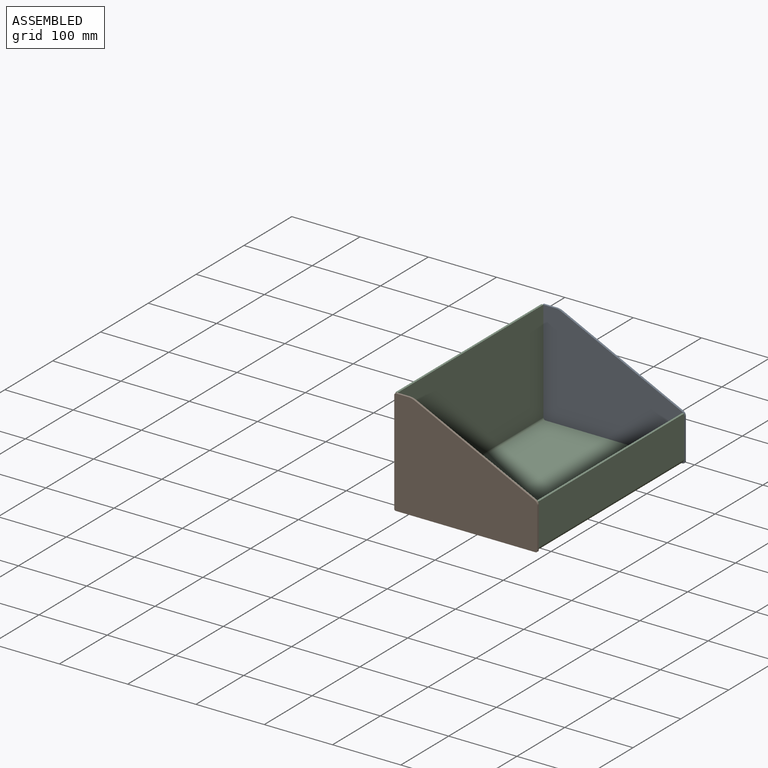
[diagram: assembled view]
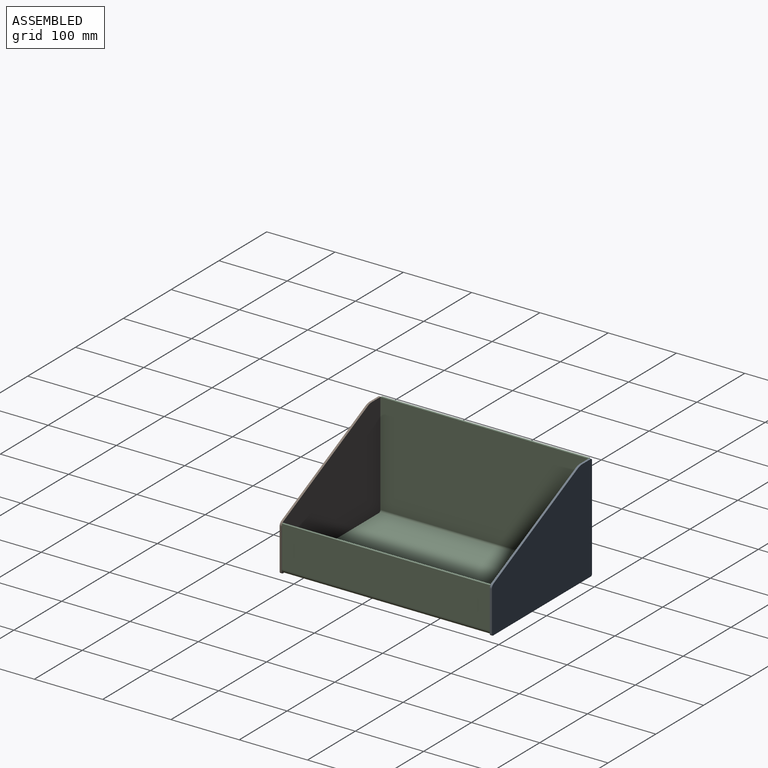
[diagram: assembled view, second angle]
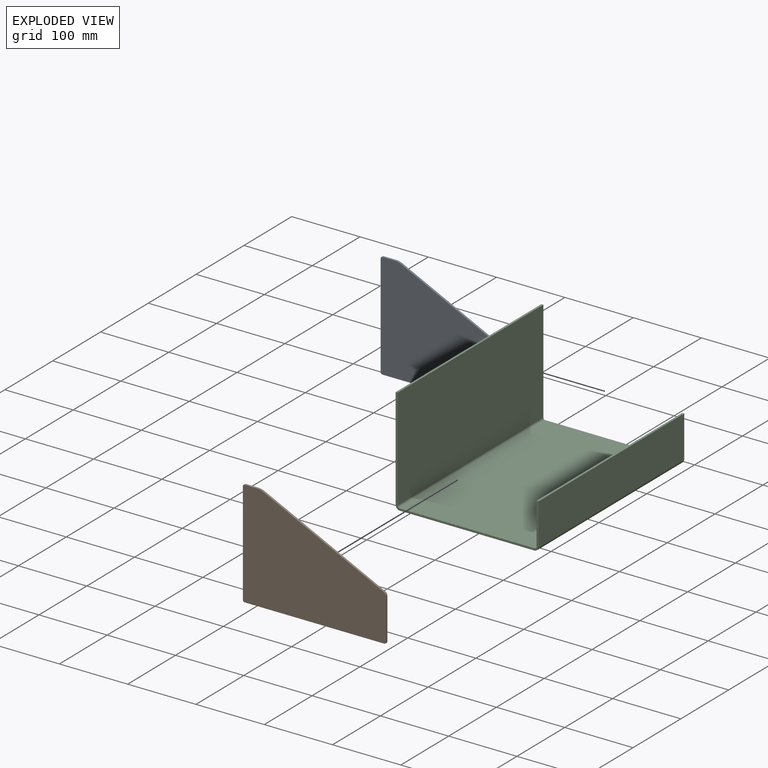
[diagram: exploded view]
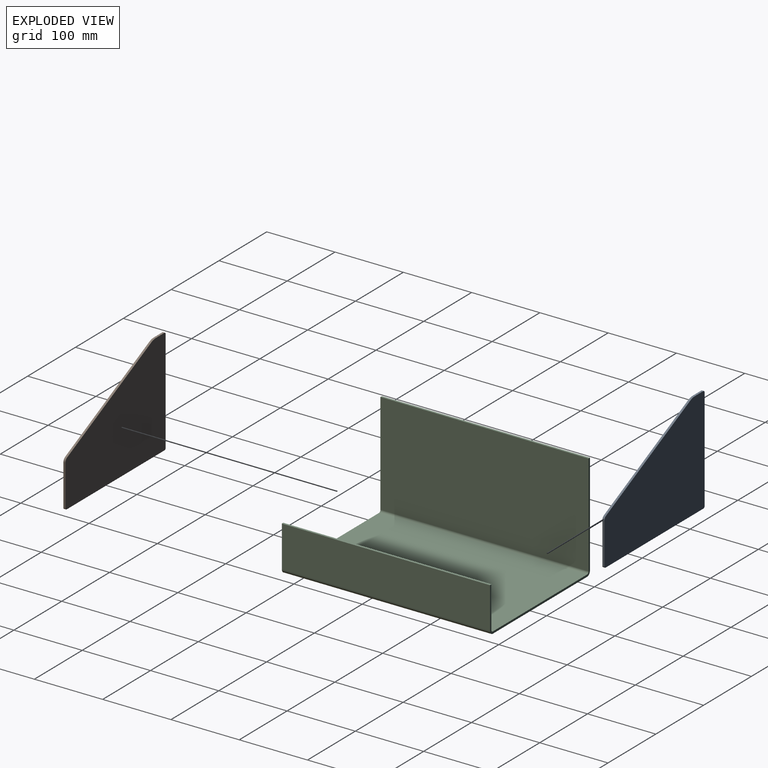
[diagram: exploded view, second angle]
ASSEMBLY  parts=3 mates=6
PART A: 12 faces, bbox 209.6x3x155.6 mm
  f0: plane 150.5x3mm, normal (-1,0,0), area 451.1mm2, adj f1,f9,f10,f11
  f1: cylinder r=2.54mm len=3mm, axis (0,1,0), area 12mm2, adj f0,f2,f10,f11
  f2: plane 204.47x3mm, normal (0,0,-1), area 612.8mm2, adj f1,f3,f10,f11
  f3: cylinder r=2.54mm len=3mm, axis (0,1,0), area 12mm2, adj f2,f4,f10,f11
  f4: plane 60.15x3mm, normal (1,0,0), area 180.3mm2, adj f3,f5,f10,f11
  f5: cylinder r=6.35mm len=5.72mm, axis (0,1,0), area 21.3mm2, adj f4,f6,f10,f11
  f6: plane 176.64x85.27mm, normal (0.43,0,0.9), area 587.9mm2, adj f5,f7,f10,f11
  f7: cylinder r=19.05mm len=8.28mm, axis (0,1,0), area 25.7mm2, adj f6,f8,f10,f11
  f8: plane 18.5x3mm, normal (0,0,1), area 55.5mm2, adj f7,f9,f10,f11
  f9: cylinder r=2.54mm len=3mm, axis (0,1,0), area 12mm2, adj f0,f8,f10,f11
  f10: plane 209.55x155.58mm, normal (0,-1,0), area 24407mm2, adj f0,f1,f2,f3,f4,f5,f6,f7
  f11: plane 209.55x155.58mm, normal (0,1,0), area 24407mm2, adj f0,f1,f2,f3,f4,f5,f6,f7
PART B: same geometry as A
PART C: 22 faces, bbox 209.2x304.8x155.4 mm
  f0: plane 149.23x3mm, normal (0,1,0), area 447.3mm2, adj f2,f3,f4,f19
  f1: plane 149.23x3mm, normal (0,-1,0), area 447.3mm2, adj f2,f3,f4,f18
  f2: plane 304.8x3mm, normal (0,0,1), area 913.5mm2, adj f0,f1,f3,f4
  f3: plane 304.8x149.23mm, normal (-1,0,0), area 45483.8mm2, adj f0,f1,f2,f20
  f4: plane 304.8x149.23mm, normal (1,0,0), area 45483.8mm2, adj f0,f1,f2,f21
  f5: plane 196.85x3mm, normal (0,1,0), area 590mm2, adj f7,f8,f15,f19
  f6: plane 196.85x3mm, normal (0,-1,0), area 590mm2, adj f7,f8,f14,f18
  f7: plane 304.8x196.85mm, normal (0,0,-1), area 59999.9mm2, adj f5,f6,f16,f20
  f8: plane 304.8x196.85mm, normal (0,0,1), area 59999.9mm2, adj f5,f6,f17,f21
  f9: plane 60.33x3mm, normal (0,1,0), area 180.8mm2, adj f10,f12,f13,f15
  f10: plane 304.8x3mm, normal (0,0,1), area 913.5mm2, adj f9,f11,f12,f13
  f11: plane 60.33x3mm, normal (0,-1,0), area 180.8mm2, adj f10,f12,f13,f14
  f12: plane 304.8x60.33mm, normal (1,0,0), area 18387.1mm2, adj f9,f10,f11,f16
  f13: plane 304.8x60.33mm, normal (-1,0,0), area 18387.1mm2, adj f9,f10,f11,f17
  f14: plane 6.17x6.17mm, normal (0,-1,0), area 22mm2, adj f6,f11,f16,f17
  f15: plane 6.17x6.17mm, normal (0,1,0), area 22mm2, adj f5,f9,f16,f17
  f16: cylinder r=6.17mm len=304.8mm, axis (0,-1,0), area 2955.1mm2, adj f7,f12,f14,f15
  f17: cylinder r=3.17mm len=304.8mm, axis (0,-1,0), area 1520.1mm2, adj f8,f13,f14,f15
  f18: plane 6.17x6.17mm, normal (0,-1,0), area 22mm2, adj f1,f6,f20,f21
  f19: plane 6.17x6.17mm, normal (0,1,0), area 22mm2, adj f0,f5,f20,f21
  f20: cylinder r=6.17mm len=304.8mm, axis (0,-1,0), area 2955.1mm2, adj f3,f7,f18,f19
  f21: cylinder r=3.17mm len=304.8mm, axis (0,-1,0), area 1520.1mm2, adj f4,f8,f18,f19
PLACE A t=(-213.3,187.26,-80.96)mm
PLACE B t=(-213.3,-120.54,-80.96)mm
PLACE C t=(-113.17,31.86,-77.79)mm fixed
MATE planar C.f2 <-> B.f8  axis (0,0,1) through (-211.8,31.86,74.61)mm
MATE planar B.f11 <-> C.f6  axis (0,1,0) through (-213.3,-120.54,-78.42)mm
MATE planar C.f3 <-> A.f0  axis (-1,0,0) through (-213.3,31.86,0)mm
MATE planar C.f2 <-> A.f8  axis (0,0,1) through (-210.3,184.26,74.61)mm
MATE planar C.f3 <-> B.f0  axis (-1,0,0) through (-213.3,31.86,0)mm
MATE planar C.f5 <-> A.f10  axis (0,1,0) through (-108.7,184.26,-79.29)mm
